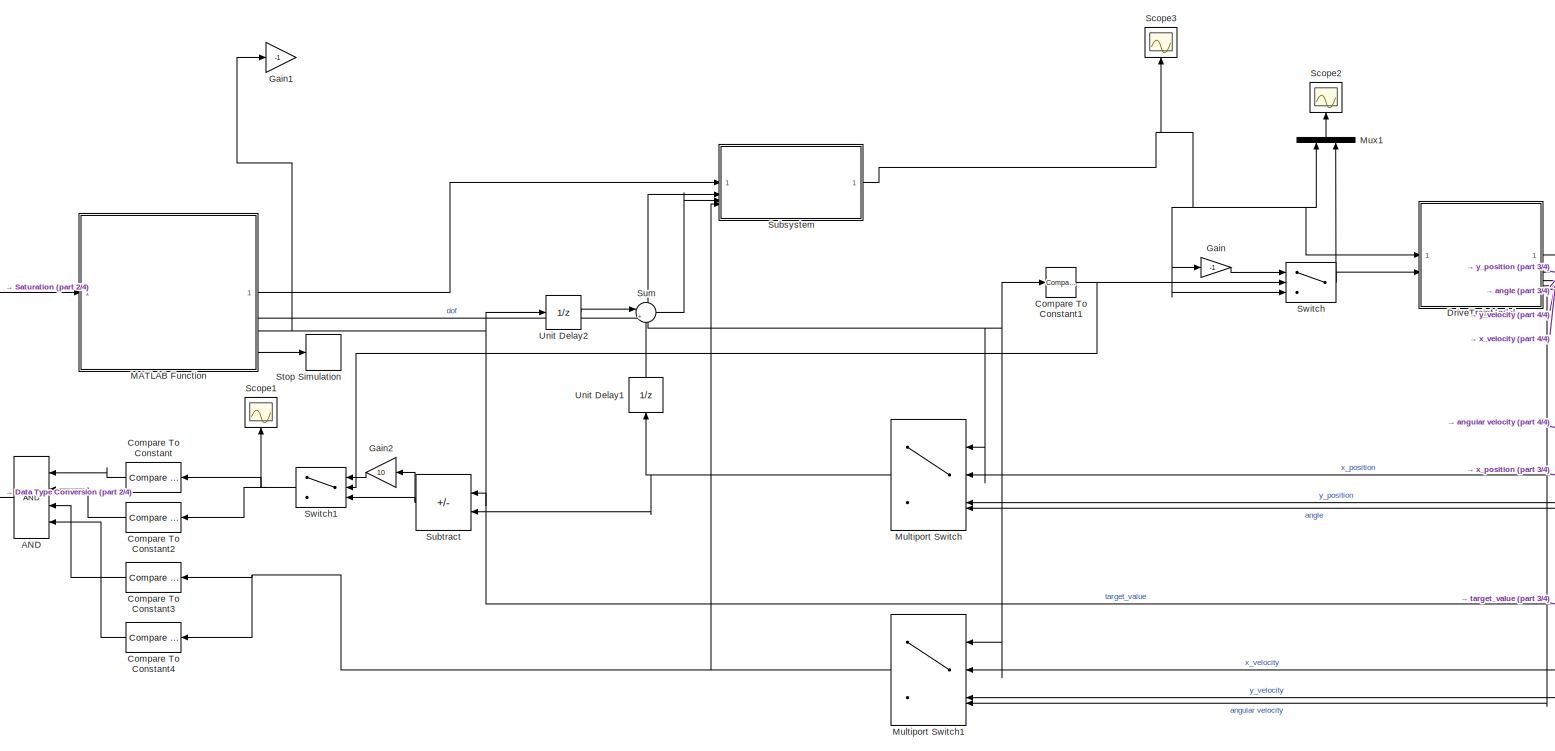
[diagram: root canvas - part 1/4, most of the canvas]
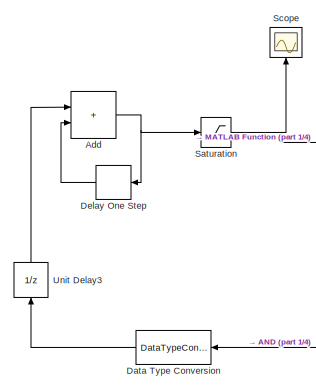
[diagram: root canvas - part 2/4, middle left region]
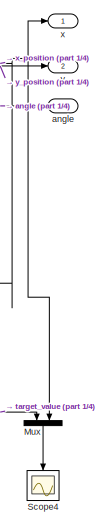
[diagram: root canvas - part 3/4, middle right region]
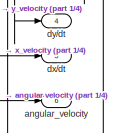
[diagram: root canvas - part 4/4, middle right region]
MODEL slx_b93cfaeea7d7
KIND model
CONFIG AbsTol = auto
CONFIG EnableMultiTasking = off
CONFIG FixedStep = 0.01
CONFIG MaxStep = auto
CONFIG MinStep = auto
CONFIG RelTol = 1e-3
CONFIG SampleTimeConstraint = Unconstrained
CONFIG SolverName = VariableStepAuto
CONFIG StartTime = 0.0
CONFIG StopTime = 10.0
BLOCK [Logic] AND
  AllPortsSameDT = off
  IconShape = distinctive
  Inputs = 4
  OutDataTypeStr = boolean
BLOCK [Sum] Add
  IconShape = rectangular
BLOCK [Reference] Compare To Constant  REF=simulink/Logic and Bit
Operations/Compare
To Constant
  NameLocation = top
  SourceBlock = simulink/Logic and Bit\nOperations/Compare\nTo Constant
  SourceType = Compare To Constant
BLOCK [Reference] Compare To Constant1  REF=simulink/Logic and Bit
Operations/Compare
To Constant
  SourceBlock = simulink/Logic and Bit\nOperations/Compare\nTo Constant
  SourceType = Compare To Constant
BLOCK [Reference] Compare To Constant2  REF=simulink/Logic and Bit
Operations/Compare
To Constant
  NameLocation = top
  SourceBlock = simulink/Logic and Bit\nOperations/Compare\nTo Constant
  SourceType = Compare To Constant
BLOCK [Reference] Compare To Constant3  REF=simulink/Logic and Bit
Operations/Compare
To Constant
  NameLocation = top
  SourceBlock = simulink/Logic and Bit\nOperations/Compare\nTo Constant
  SourceType = Compare To Constant
BLOCK [Reference] Compare To Constant4  REF=simulink/Logic and Bit
Operations/Compare
To Constant
  NameLocation = top
  SourceBlock = simulink/Logic and Bit\nOperations/Compare\nTo Constant
  SourceType = Compare To Constant
BLOCK [DataTypeConversion] Data Type Conversion
  RndMeth = Floor
  SaturateOnIntegerOverflow = off
BLOCK [Delay] Delay One Step
  DelayLength = 1
  InputPortMap = u0
BLOCK [ModelReference] DriveTrainModel
  ModelNameDialog = DriveTrainModel.slx
  ModelReferenceVersion = 1.10
BLOCK [Gain] Gain
  Gain = -1
BLOCK [Gain] Gain1
  Gain = -1
BLOCK [Gain] Gain2
  Gain = 10
  NameLocation = top
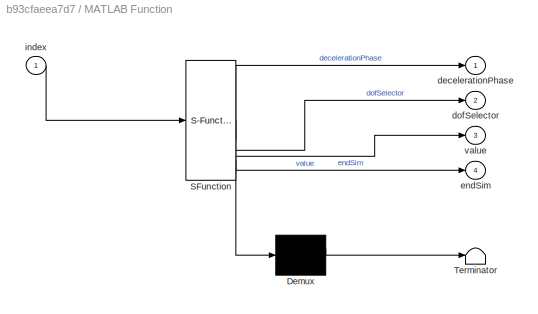
BLOCK [SubSystem] MATLAB Function
  ErrorFcn = Stateflow.Translate.translate
  PermitHierarchicalResolution = ExplicitOnly
  SFBlockType = MATLAB Function
  TreatAsAtomicUnit = on
BLOCK [Demux] MATLAB Function/ Demux 
  Outputs = 1
BLOCK [S-Function] MATLAB Function/ SFunction 
  EnableBusSupport = off
  FunctionName = sf_sfun
  PortCounts = [1 5]
  SFcnIsStateOwnerBlock = off
  SFunctionDeploymentMode = off
  Tag = Stateflow S-Function 2
BLOCK [Terminator] MATLAB Function/ Terminator 
BLOCK [Outport] MATLAB Function/decelerationPhase
BLOCK [Outport] MATLAB Function/dofSelector
  Port = 2
BLOCK [Outport] MATLAB Function/endSim
  Port = 4
BLOCK [Inport] MATLAB Function/index
BLOCK [Outport] MATLAB Function/value
  Port = 3
  VectorParamsAs1DForOutWhenUnconnected = off
BLOCK [MultiPortSwitch] Multiport Switch
  InputSameDT = off
  SaturateOnIntegerOverflow = off
BLOCK [MultiPortSwitch] Multiport Switch1
  InputSameDT = off
  SaturateOnIntegerOverflow = off
BLOCK [Mux] Mux
  DisplayOption = bar
  Inputs = 2
  NameLocation = left
BLOCK [Mux] Mux1
  DisplayOption = bar
  Inputs = 2
  NameLocation = right
BLOCK [Saturate] Saturation
  LinearizeAsGain = off
  LowerLimit = 0
  UpperLimit = 5
BLOCK [Scope] Scope
  ActiveDisplayYMaximum = 1.125
  ActiveDisplayYMinimum = -0.125
  Floating = off
  GraphicalSettings = {"GraphicalSettings":{"LegacySettings":true,"Style":{"Style":{"AxesColor":"[0 0 0]","ChannelNames":[""],"ColorOrder":"[1 0.909803921568627 0.392156862745098;0.149019607843137 0.549019607843137 0.866666666666667;0.96078431372549 0.466666666666667 0.16078431372549;0.286274509803922 0.858823529411765 0.250980392156863;0.752941176470588 0.36078431372549 0.984313725490196;0.423529411764706 0.9568627450...<+501ch>
  MultipleDisplayCache = [{"MaxYLimMag":1.125,"MaxYLimReal":1.125,"MinYLimMag":0,"MinYLimReal":-0.125,"PlotAsMagnitudePhase":false,"ShowGrid":true,"ShowLegend":false,"Title":"%<SignalLabel>","YLabel":""}]
  NameLocation = right
  NumInputPorts = 1
  WasSavedAsWebScope = on
BLOCK [Scope] Scope1
  ActiveDisplayYMaximum = 19.1126
  ActiveDisplayYMinimum = -22.01338
  DataLoggingVariableName = ScopeData5
  Floating = off
  GraphicalSettings = {"GraphicalSettings":{"LegacySettings":true,"Style":{"AxesScalingProperties":{"ScaleAxesLimitsAtStop":false},"Style":{"AxesColor":"[0 0 0]","ChannelNames":[""],"ColorOrder":"[1 0.909803921568627 0.392156862745098;0.149019607843137 0.549019607843137 0.866666666666667;0.96078431372549 0.466666666666667 0.16078431372549;0.286274509803922 0.858823529411765 0.250980392156863;0.752941176470588 0.3607843...<+556ch>
  MultipleDisplayCache = [{"MaxYLimMag":22.01338,"MaxYLimReal":19.1126,"MinYLimMag":0,"MinYLimReal":-22.01338,"PlotAsMagnitudePhase":false,"ShowGrid":true,"ShowLegend":false,"Title":"%<SignalLabel>","YLabel":""}]
  NameLocation = right
  NumInputPorts = 1
  WasSavedAsWebScope = on
BLOCK [Scope] Scope2
  ActiveDisplayYMaximum = 1.1949781991445083
  ActiveDisplayYMinimum = -7.754803792300577
  DataLoggingVariableName = ScopeData6
  Floating = off
  GraphicalSettings = {"Style":{"BackgroundColor":[0.12941176470588237,0.12941176470588237,0.12941176470588237],"AxesColor":[0.07058823529411765,0.07058823529411765,0.07058823529411765],"LabelsColor":[0.8509803921568627,0.8509803921568627,0.8509803921568627],"PreserveColors":false,"Visible":[true,true],"LineStyle":["-","-"],"LineWidth":[1.5,1.5],"BarWidth":[0.9,0.9],"LineColor":["auto","auto"],"LineFaceAlpha":[1,1],"Li...<+2104ch>
  MultipleDisplayCache = [{"MaxYLimMag":7.754803792300577,"MaxYLimReal":1.1949781991445083,"MinYLimMag":0,"MinYLimReal":-7.754803792300577,"PlotAsMagnitudePhase":false,"ShowGrid":true,"ShowLegend":true,"Title":"%<SignalLabel>","YLabel":""}]
  NameLocation = right
  NumInputPorts = 1
  ScopeFrameLocation = window
  ShowLegend = on
  WasSavedAsWebScope = on
  WindowPosition = [626.000000,107.000000,560.000000,420.000000,]
BLOCK [Scope] Scope3
  ActiveDisplayYMaximum = 13.5
  ActiveDisplayYMinimum = -1.5
  DataLoggingVariableName = ScopeData7
  Floating = off
  GraphicalSettings = {"GraphicalSettings":{"LegacySettings":true,"Style":{"AxesScalingProperties":{"ScaleAxesLimitsAtStop":false},"Style":{"AxesColor":"[0 0 0]","ChannelNames":[""],"ColorOrder":"[1 0.909803921568627 0.392156862745098;0.149019607843137 0.549019607843137 0.866666666666667;0.96078431372549 0.466666666666667 0.16078431372549;0.286274509803922 0.858823529411765 0.250980392156863;0.752941176470588 0.3607843...<+559ch>
  MultipleDisplayCache = [{"MaxYLimMag":13.5,"MaxYLimReal":13.5,"MinYLimMag":0,"MinYLimReal":-1.5,"PlotAsMagnitudePhase":false,"ShowGrid":true,"ShowLegend":false,"Title":"%<SignalLabel>","YLabel":""}]
  NameLocation = right
  NumInputPorts = 1
  WasSavedAsWebScope = on
BLOCK [Scope] Scope4
  ActiveDisplayYMaximum = 18.189669831421952
  ActiveDisplayYMinimum = -3.7664036777078795
  DataLoggingVariableName = ScopeData1
  Floating = off
  GraphicalSettings = {"Style":{"BackgroundColor":[0.12941176470588237,0.12941176470588237,0.12941176470588237],"AxesColor":[0.07058823529411765,0.07058823529411765,0.07058823529411765],"LabelsColor":[0.8509803921568627,0.8509803921568627,0.8509803921568627],"PreserveColors":false,"Visible":[true,true],"LineStyle":["-","-"],"LineWidth":[1.5,1.5],"BarWidth":[0.9,0.9],"LineColor":["auto","auto"],"LineFaceAlpha":[1,1],"Li...<+2130ch>
  MultipleDisplayCache = [{"MaxYLimMag":18.189669831421952,"MaxYLimReal":18.189669831421952,"MinYLimMag":0,"MinYLimReal":-3.7664036777078795,"PlotAsMagnitudePhase":false,"ShowGrid":true,"ShowLegend":false,"Title":"%<SignalLabel>","YLabel":""}]
  NameLocation = left
  NumInputPorts = 1
  ScopeFrameLocation = window
  WasSavedAsWebScope = on
  WindowPosition = [728.000000,-164.000000,560.000000,420.000000,]
BLOCK [Stop] Stop Simulation
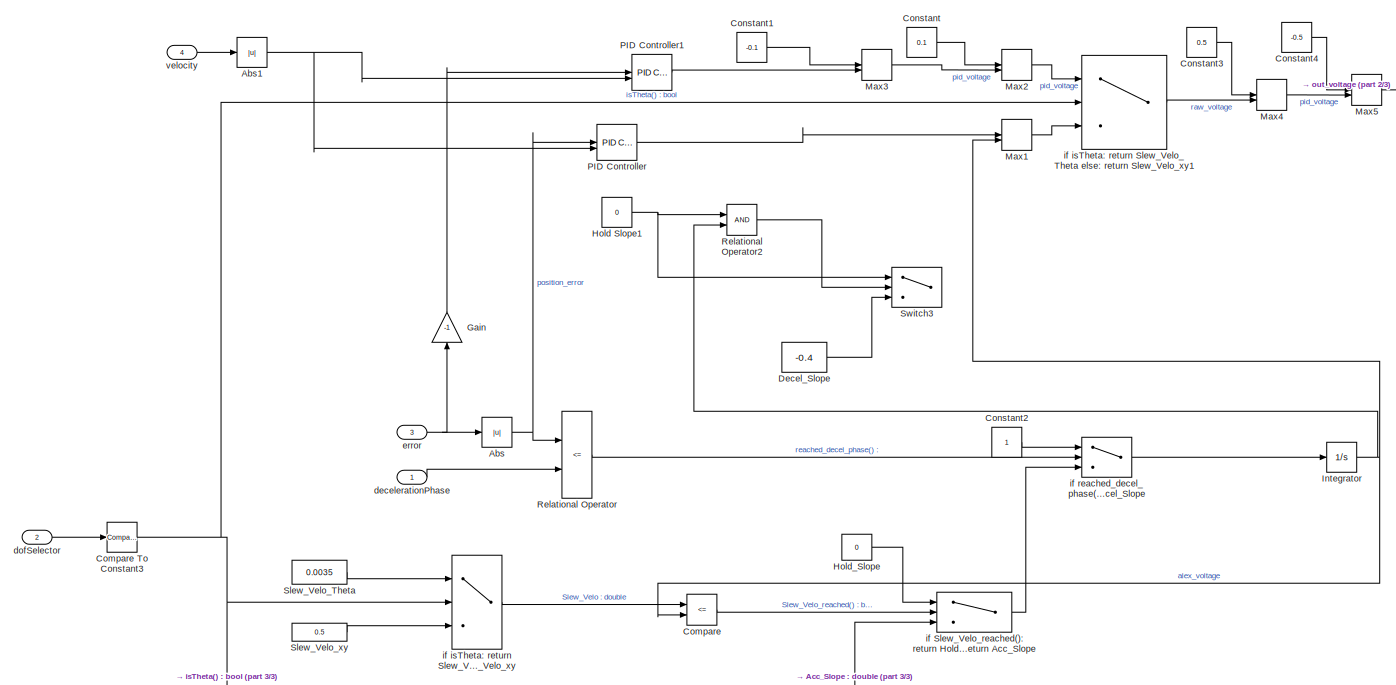
[diagram: Subsystem - part 1/3, full width, middle band]
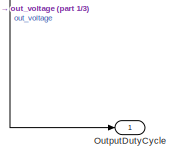
[diagram: Subsystem - part 2/3, top right region]
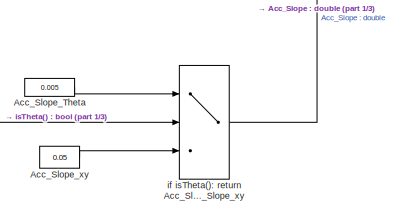
[diagram: Subsystem - part 3/3, bottom center region]
BLOCK [SubSystem] Subsystem
BLOCK [Abs] Subsystem/Abs
  SaturateOnIntegerOverflow = off
BLOCK [Abs] Subsystem/Abs1
  SaturateOnIntegerOverflow = off
BLOCK [Constant] Subsystem/Acc_Slope_Theta
  Value = 0.005
BLOCK [Constant] Subsystem/Acc_Slope_xy
  Value = 0.05
BLOCK [RelationalOperator] Subsystem/Compare 
  InputSameDT = off
  Operator = <=
  OutDataTypeStr = boolean
  RndMeth = Simplest
BLOCK [Reference] Subsystem/Compare To Constant3  REF=simulink/Logic and Bit
Operations/Compare
To Constant
  SourceBlock = simulink/Logic and Bit\nOperations/Compare\nTo Constant
  SourceType = Compare To Constant
BLOCK [Constant] Subsystem/Constant
  Value = 0.1
BLOCK [Constant] Subsystem/Constant1
  Value = -0.1
BLOCK [Constant] Subsystem/Constant2
BLOCK [Constant] Subsystem/Constant3
  Value = 0.5
BLOCK [Constant] Subsystem/Constant4
  Value = -0.5
BLOCK [Constant] Subsystem/Decel_Slope
  Value = -0.4
BLOCK [Gain] Subsystem/Gain
  Gain = -1
  NameLocation = right
BLOCK [Constant] Subsystem/Hold Slope1 
  Value = 0
BLOCK [Constant] Subsystem/Hold_Slope
  Value = 0
BLOCK [Integrator] Subsystem/Integrator
BLOCK [MinMax] Subsystem/Max1
  Inputs = 2
BLOCK [MinMax] Subsystem/Max2
  Inputs = 2
BLOCK [MinMax] Subsystem/Max3
  Function = max
  Inputs = 2
BLOCK [MinMax] Subsystem/Max4
  Inputs = 2
BLOCK [MinMax] Subsystem/Max5
  Function = max
  Inputs = 2
BLOCK [Outport] Subsystem/OutputDutyCycle
BLOCK [Reference] Subsystem/PID Controller  REF=slpidlib/PID Controller
  LibrarySourceBlock = simulink/Continuous/PID Controller
  SourceBlock = slpidlib/PID Controller
  SourceType = PID 1dof
BLOCK [Reference] Subsystem/PID Controller1  REF=slpidlib/PID Controller
  LibrarySourceBlock = simulink/Continuous/PID Controller
  SourceBlock = slpidlib/PID Controller
  SourceType = PID 1dof
BLOCK [RelationalOperator] Subsystem/Relational Operator
  InputSameDT = off
  Operator = <=
  OutDataTypeStr = boolean
  RndMeth = Simplest
BLOCK [RelationalOperator] Subsystem/Relational Operator2
  InputSameDT = off
  OutDataTypeStr = boolean
  RndMeth = Simplest
BLOCK [Constant] Subsystem/Slew_Velo_Theta
  Value = 0.0035
BLOCK [Constant] Subsystem/Slew_Velo_xy
  Value = 0.5
BLOCK [Switch] Subsystem/Switch3
  Criteria = u2 > Threshold
  InputSameDT = off
  SaturateOnIntegerOverflow = off
BLOCK [Inport] Subsystem/decelerationPhase
BLOCK [Inport] Subsystem/dofSelector
  Port = 2
BLOCK [Inport] Subsystem/error
  Port = 3
BLOCK [Switch] Subsystem/if Slew_Velo_reached(): return Hold_Slope else: return Acc_Slope
  Criteria = u2 > Threshold
  InputSameDT = off
  SaturateOnIntegerOverflow = off
BLOCK [Switch] Subsystem/if isTheta(): return Acc_Slope_Theta else: return Acc_Slope_xy
  Criteria = u2 > Threshold
  InputSameDT = off
  SaturateOnIntegerOverflow = off
BLOCK [Switch] Subsystem/if isTheta: return Slew_Velo_Theta else: return Slew_Velo_xy
  Criteria = u2 > Threshold
  InputSameDT = off
  SaturateOnIntegerOverflow = off
BLOCK [Switch] Subsystem/if isTheta: return Slew_Velo_Theta else: return Slew_Velo_xy1
  Criteria = u2 > Threshold
  InputSameDT = off
  SaturateOnIntegerOverflow = off
BLOCK [Switch] Subsystem/if reached_decel_phase(): return Decel_Slope 
  Criteria = u2 > Threshold
  InputSameDT = off
  SaturateOnIntegerOverflow = off
BLOCK [Inport] Subsystem/velocity
  Port = 4
BLOCK [Sum] Subtract
  IconShape = rectangular
  Inputs = +-
BLOCK [Sum] Sum
  Inputs = |+-
BLOCK [Switch] Switch
  Criteria = u2 > Threshold
  InputSameDT = off
  SaturateOnIntegerOverflow = off
BLOCK [Switch] Switch1
  Criteria = u2 > Threshold
  InputSameDT = off
  NameLocation = top
  SaturateOnIntegerOverflow = off
BLOCK [UnitDelay] Unit Delay1
  HasFrameUpgradeWarning = on
  NameLocation = right
  SampleTime = -1
BLOCK [UnitDelay] Unit Delay2
  HasFrameUpgradeWarning = on
  SampleTime = -1
BLOCK [UnitDelay] Unit Delay3
  HasFrameUpgradeWarning = on
  NameLocation = right
  SampleTime = -1
BLOCK [Outport] angle
  Port = 3
BLOCK [Outport] angular_velocity
  Port = 6
BLOCK [Outport] dx//dt
  Port = 5
BLOCK [Outport] dy//dt
  Port = 4
BLOCK [Outport] x
BLOCK [Outport] y
  Port = 2
LINE AND:1 -> Data Type Conversion:1
NET Add:1 -> Delay One Step:1, Saturation:1
NET Compare To Constant1:1 -> Switch1:2, Switch:2
LINE Compare To Constant2:1 -> AND:2
LINE Compare To Constant3:1 -> AND:3
LINE Compare To Constant4:1 -> AND:4
LINE Compare To Constant:1 -> AND:1
LINE Data Type Conversion:1 -> Unit Delay3:1
LINE Delay One Step:1 -> Add:2
NET DriveTrainModel:1 -> Multiport Switch:2, Mux:2, x:1
NET DriveTrainModel:2 -> Multiport Switch:3, y:1
NET DriveTrainModel:3 -> Multiport Switch:4, angle:1
NET DriveTrainModel:4 -> Multiport Switch1:3, dy//dt:1
NET DriveTrainModel:5 -> Multiport Switch1:2, dx//dt:1
NET DriveTrainModel:6 -> Multiport Switch1:4, angular_velocity:1
LINE Gain2:1 -> Switch1:1
LINE Gain:1 -> Switch:1
LINE MATLAB Function:1 -> Subsystem:1
NET MATLAB Function:2 -> Compare To Constant1:1, Multiport Switch1:1, Multiport Switch:1, Subsystem:2
NET MATLAB Function:3 -> Gain1:1, Mux:1, Subtract:1, Unit Delay2:1
LINE MATLAB Function:4 -> Stop Simulation:1
NET Multiport Switch1:1 -> Compare To Constant3:1, Compare To Constant4:1, Subsystem:4
NET Multiport Switch:1 -> Subtract:2, Unit Delay1:1
LINE Mux1:1 -> Scope2:1
LINE Mux:1 -> Scope4:1
NET Saturation:1 -> MATLAB Function:1, Scope:1
NET Subsystem/Abs1:1 -> Subsystem/PID Controller1:2, Subsystem/PID Controller:2
NET Subsystem/Abs:1 -> Subsystem/PID Controller:1, Subsystem/Relational Operator:1
LINE Subsystem/Acc_Slope_Theta:1 -> Subsystem/if isTheta(): return Acc_Slope_Theta else: return Acc_Slope_xy:1
LINE Subsystem/Acc_Slope_xy:1 -> Subsystem/if isTheta(): return Acc_Slope_Theta else: return Acc_Slope_xy:3
LINE Subsystem/Compare :1 -> Subsystem/if Slew_Velo_reached(): return Hold_Slope else: return Acc_Slope:2
NET Subsystem/Compare To Constant3:1 -> Subsystem/if isTheta(): return Acc_Slope_Theta else: return Acc_Slope_xy:2, Subsystem/if isTheta: return Slew_Velo_Theta else: return Slew_Velo_xy1:2, Subsystem/if isTheta: return Slew_Velo_Theta else: return Slew_Velo_xy:2
LINE Subsystem/Constant1:1 -> Subsystem/Max3:1
LINE Subsystem/Constant2:1 -> Subsystem/if reached_decel_phase(): return Decel_Slope :1
LINE Subsystem/Constant3:1 -> Subsystem/Max4:1
LINE Subsystem/Constant4:1 -> Subsystem/Max5:1
LINE Subsystem/Constant:1 -> Subsystem/Max2:1
LINE Subsystem/Decel_Slope:1 -> Subsystem/Switch3:3
LINE Subsystem/Gain:1 -> Subsystem/PID Controller1:1
NET Subsystem/Hold Slope1 :1 -> Subsystem/Relational Operator2:1, Subsystem/Switch3:1
LINE Subsystem/Hold_Slope:1 -> Subsystem/if Slew_Velo_reached(): return Hold_Slope else: return Acc_Slope:1
NET Subsystem/Integrator:1 -> Subsystem/Compare :2, Subsystem/Max1:2, Subsystem/Relational Operator2:2
LINE Subsystem/Max1:1 -> Subsystem/if isTheta: return Slew_Velo_Theta else: return Slew_Velo_xy1:3
LINE Subsystem/Max2:1 -> Subsystem/if isTheta: return Slew_Velo_Theta else: return Slew_Velo_xy1:1
LINE Subsystem/Max3:1 -> Subsystem/Max2:2
LINE Subsystem/Max4:1 -> Subsystem/Max5:2
LINE Subsystem/Max5:1 -> Subsystem/OutputDutyCycle:1
LINE Subsystem/PID Controller1:1 -> Subsystem/Max3:2
LINE Subsystem/PID Controller:1 -> Subsystem/Max1:1
LINE Subsystem/Relational Operator2:1 -> Subsystem/Switch3:2
LINE Subsystem/Relational Operator:1 -> Subsystem/if reached_decel_phase(): return Decel_Slope :2
LINE Subsystem/Slew_Velo_Theta:1 -> Subsystem/if isTheta: return Slew_Velo_Theta else: return Slew_Velo_xy:1
LINE Subsystem/Slew_Velo_xy:1 -> Subsystem/if isTheta: return Slew_Velo_Theta else: return Slew_Velo_xy:3
LINE Subsystem/decelerationPhase:1 -> Subsystem/Relational Operator:2
LINE Subsystem/dofSelector:1 -> Subsystem/Compare To Constant3:1
NET Subsystem/error:1 -> Subsystem/Abs:1, Subsystem/Gain:1
LINE Subsystem/if Slew_Velo_reached(): return Hold_Slope else: return Acc_Slope:1 -> Subsystem/if reached_decel_phase(): return Decel_Slope :3
LINE Subsystem/if isTheta(): return Acc_Slope_Theta else: return Acc_Slope_xy:1 -> Subsystem/if Slew_Velo_reached(): return Hold_Slope else: return Acc_Slope:3
LINE Subsystem/if isTheta: return Slew_Velo_Theta else: return Slew_Velo_xy1:1 -> Subsystem/Max4:2
LINE Subsystem/if isTheta: return Slew_Velo_Theta else: return Slew_Velo_xy:1 -> Subsystem/Compare :1
LINE Subsystem/if reached_decel_phase(): return Decel_Slope :1 -> Subsystem/Integrator:1
LINE Subsystem/velocity:1 -> Subsystem/Abs1:1
NET Subsystem:1 -> DriveTrainModel:1, Gain:1, Mux1:1, Scope3:1, Switch:3
NET Subtract:1 -> Gain2:1, Switch1:3
LINE Sum:1 -> Subsystem:3
NET Switch1:1 -> Compare To Constant2:1, Compare To Constant:1, Scope1:1
NET Switch:1 -> DriveTrainModel:2, Mux1:2
LINE Unit Delay1:1 -> Sum:2
LINE Unit Delay2:1 -> Sum:1
LINE Unit Delay3:1 -> Add:1
note: NET lines group one-source signal fan-out (src -> all destinations, sorted); 1:1 wires keep LINE
CHART MATLAB Function states=1 transitions=1
  STATE_LABEL 'eML_blk_kernel()'
  STATE_LABEL 'SCRIPT:\nfunction [decelerationPhase, dofSelector, value, endSim] = pathSignal(index)\n% Returns path values and a signal to stop simulation when out of bounds\n\n% Define the path matrix\npathMatrix = [\n    15, 1, 3;\n    -pi/2, 3, 1;\n    -10, 2, 3.8;\n    -pi, 3, 1;\n    8, 1, 3\n              ];\n\n% Get the size of the path\nN = size(pathMatrix, 1);\n\n% Initialize outputs\nvalue = 0;\ndofSelector = 1;\ndecele...<+280ch>'
CHART  states=0 transitions=0
